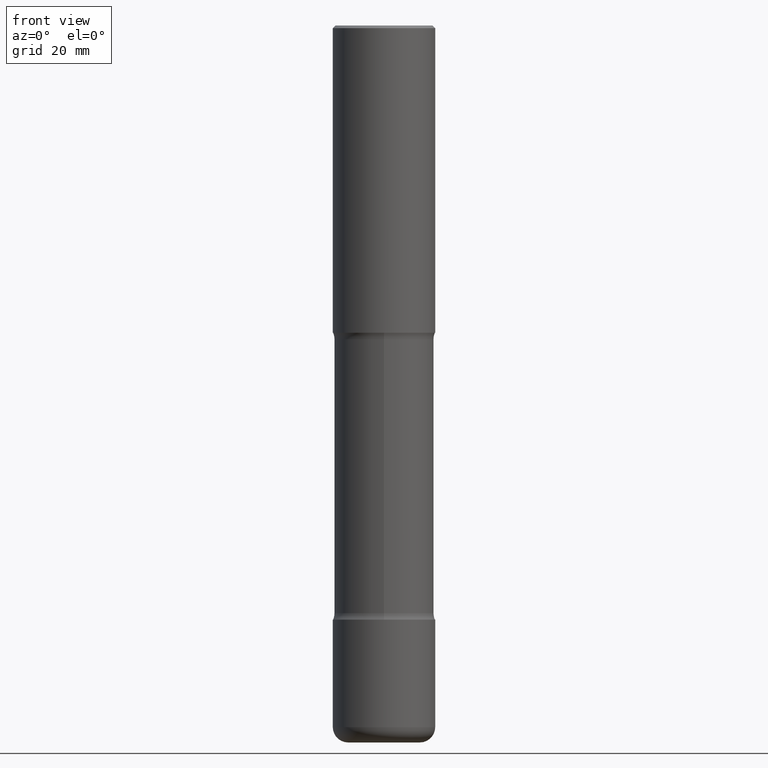
[diagram: clean part render]
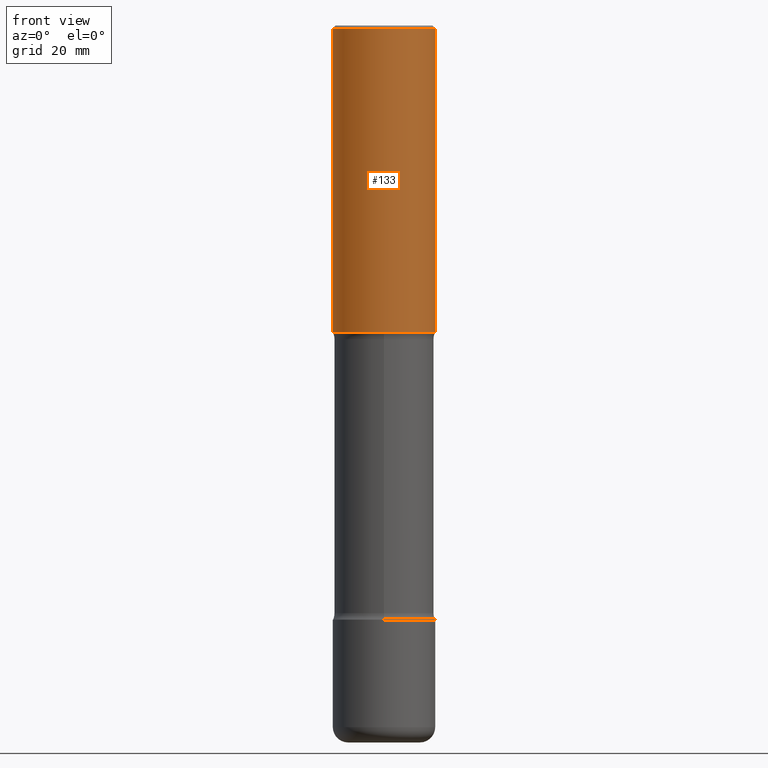
[diagram: same view with one face highlighted and labeled with its STEP entity id]
A machine part, front view. The second image highlights one B-rep face of the part: STEP entity #133.
In plain terms, the highlighted cylindrical surface (partial cylindrical patch) has radius 10 mm, axis along (-0, 0, 1).
Its self-contained STEP definition (entity closure, byte-faithful):
#3 = CARTESIAN_POINT ( 'NONE',  ( -0.3937000000000002720, -1.361296672008554112E-15, -2.362200000000000077 ) ) ;
#15 = AXIS2_PLACEMENT_3D ( 'NONE', #550, #375, #24 ) ;
#24 = DIRECTION ( 'NONE',  ( 1.000000000000000000, -6.982962677686266711E-15, 0.000000000000000000 ) ) ;
#25 = CARTESIAN_POINT ( 'NONE',  ( 0.3937000000000001054, -2.749192406205084005E-15, 1.919750796630860452E-29 ) ) ;
#30 = CYLINDRICAL_SURFACE ( 'NONE', #499, 0.3937000000000001054 ) ;
#32 = CARTESIAN_POINT ( 'NONE',  ( 0.000000000000000000, 0.000000000000000000, 0.000000000000000000 ) ) ;
#42 = CARTESIAN_POINT ( 'NONE',  ( 0.3937000000000000499, -2.770807688499515734E-15, -0.02000000000000008715 ) ) ;
#43 = ORIENTED_EDGE ( 'NONE', *, *, #150, .T. ) ;
#58 = CIRCLE ( 'NONE', #15, 0.3937000000000002164 ) ;
#61 = CARTESIAN_POINT ( 'NONE',  ( 4.890937612370294178E-31, -6.982962677686321191E-17, -0.02000000000000008715 ) ) ;
#85 = DIRECTION ( 'NONE',  ( -2.445468806185136877E-29, 3.491481338843145188E-15, 1.000000000000000000 ) ) ;
#94 = DIRECTION ( 'NONE',  ( -2.445468806185136597E-29, 3.491481338843145583E-15, 1.000000000000000000 ) ) ;
#102 = ORIENTED_EDGE ( 'NONE', *, *, #522, .F. ) ;
#113 = ORIENTED_EDGE ( 'NONE', *, *, #333, .F. ) ;
#130 = VERTEX_POINT ( 'NONE', #246 ) ;
#133 = ADVANCED_FACE ( 'NONE', ( #156 ), #30, .T. ) ;
#144 = EDGE_CURVE ( 'NONE', #130, #256, #154, .T. ) ;
#150 = EDGE_CURVE ( 'NONE', #502, #130, #58, .T. ) ;
#154 = LINE ( 'NONE', #25, #253 ) ;
#155 = EDGE_LOOP ( 'NONE', ( #102, #43, #164, #113 ) ) ;
#156 = FACE_OUTER_BOUND ( 'NONE', #155, .T. ) ;
#162 = VECTOR ( 'NONE', #85, 39.37007874015748143 ) ;
#163 = CARTESIAN_POINT ( 'NONE',  ( -0.3937000000000000499, 2.679362779428219918E-15, -0.02000000000000008715 ) ) ;
#164 = ORIENTED_EDGE ( 'NONE', *, *, #144, .T. ) ;
#183 = DIRECTION ( 'NONE',  ( 1.000000000000000000, -6.982962677686265922E-15, 0.000000000000000000 ) ) ;
#195 = DIRECTION ( 'NONE',  ( -2.445468806185136877E-29, 3.491481338843145188E-15, 1.000000000000000000 ) ) ;
#200 = DIRECTION ( 'NONE',  ( 1.000000000000000000, -6.982962677686266711E-15, 4.876176775795935793E-29 ) ) ;
#235 = CIRCLE ( 'NONE', #555, 0.3937000000000000499 ) ;
#246 = CARTESIAN_POINT ( 'NONE',  ( 0.3937000000000002164, -1.099676962482036442E-14, -2.362200000000000077 ) ) ;
#250 = VERTEX_POINT ( 'NONE', #163 ) ;
#253 = VECTOR ( 'NONE', #195, 39.37007874015748143 ) ;
#256 = VERTEX_POINT ( 'NONE', #42 ) ;
#279 = DIRECTION ( 'NONE',  ( -2.445468806185136597E-29, 3.491481338843145583E-15, 1.000000000000000000 ) ) ;
#298 = LINE ( 'NONE', #463, #162 ) ;
#333 = EDGE_CURVE ( 'NONE', #250, #256, #235, .T. ) ;
#375 = DIRECTION ( 'NONE',  ( -2.445468806185136597E-29, 3.491481338843145583E-15, 1.000000000000000000 ) ) ;
#463 = CARTESIAN_POINT ( 'NONE',  ( -0.3937000000000001054, 2.797406750687515181E-15, -1.936584745033357016E-29 ) ) ;
#499 = AXIS2_PLACEMENT_3D ( 'NONE', #32, #279, #200 ) ;
#502 = VERTEX_POINT ( 'NONE', #3 ) ;
#522 = EDGE_CURVE ( 'NONE', #502, #250, #298, .T. ) ;
#550 = CARTESIAN_POINT ( 'NONE',  ( 5.776686413970530874E-29, -8.247577218615279626E-15, -2.362200000000000077 ) ) ;
#555 = AXIS2_PLACEMENT_3D ( 'NONE', #61, #94, #183 ) ;